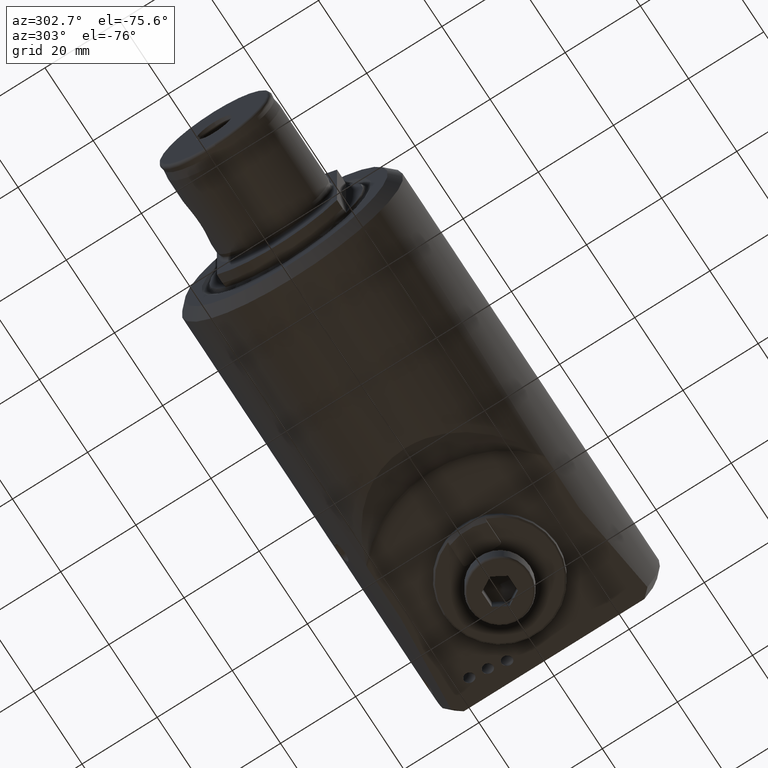
[diagram: clean part render]
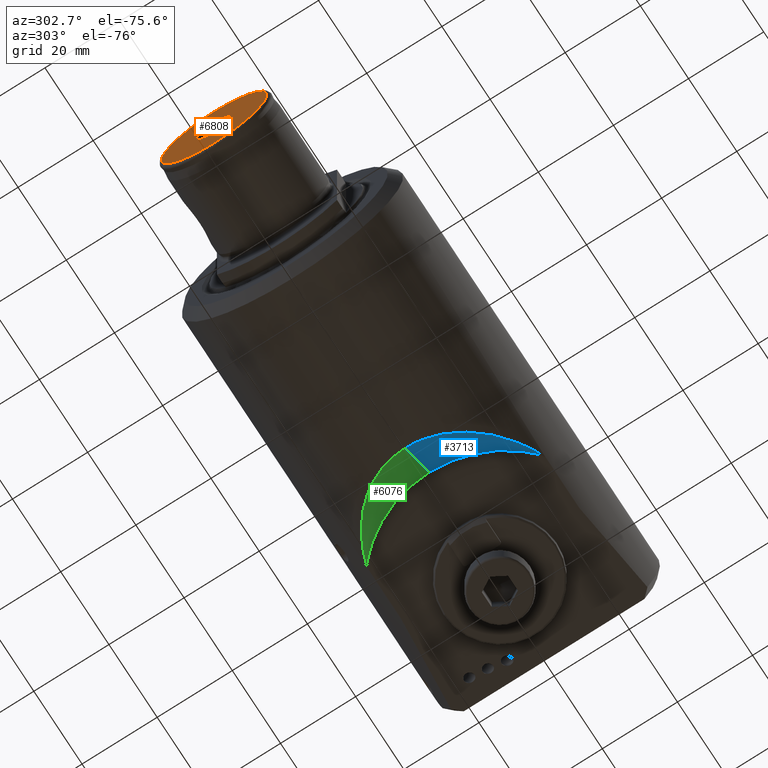
[diagram: same view with three faces highlighted in distinct colors, each labeled with its STEP entity id]
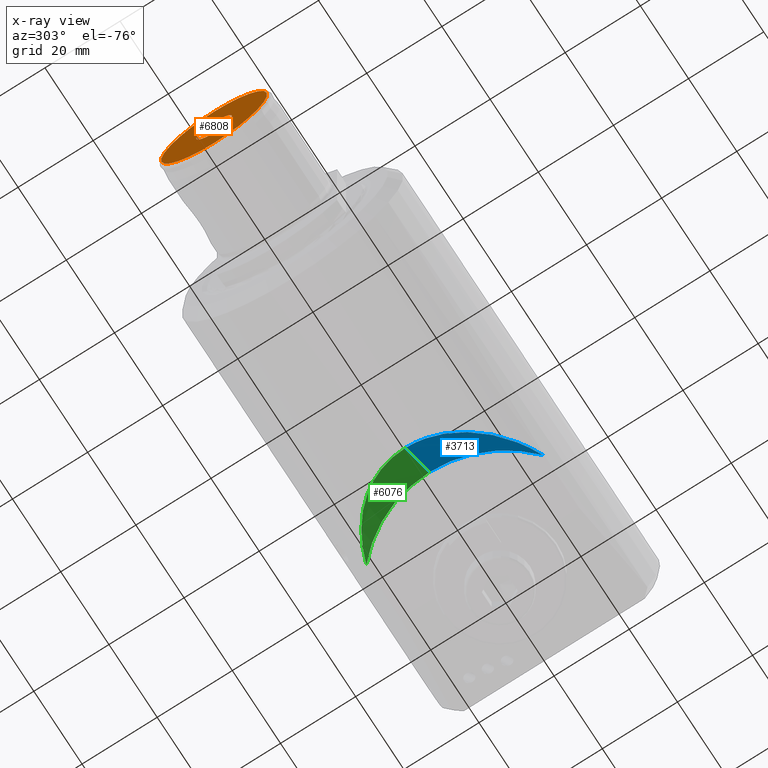
[diagram: x-ray of the same camera — body ghosted, the three highlighted faces saturated]
A machine part, auxiliary view with three faces highlighted in distinct colors.
The next image is the same camera in x-ray (body ghosted, the three faces saturated) — at least one of them is partly hidden behind the body in this view.
Their STEP definitions:

[orange] entity #6808 — the highlighted planar face has unit normal (1, 0, 0).
#92 = EDGE_LOOP ( 'NONE', ( #22389, #20858 ) ) ;
#1411 = CARTESIAN_POINT ( 'NONE',  ( -141.0000000000000000, -3.122502256758252800E-014, 0.0000000000000000000 ) ) ;
#2102 = CIRCLE ( 'NONE', #14800, 14.10000000000000000 ) ;
#2503 = CIRCLE ( 'NONE', #17292, 4.749999999999999100 ) ;
#3546 = DIRECTION ( 'NONE',  ( 0.0000000000000000000, 0.0000000000000000000, 1.000000000000000000 ) ) ;
#3902 = DIRECTION ( 'NONE',  ( -1.000000000000000000, -0.0000000000000000000, -0.0000000000000000000 ) ) ;
#4666 = CARTESIAN_POINT ( 'NONE',  ( -141.0000000000000000, -3.122502256758252800E-014, 14.10000000000000000 ) ) ;
#4721 = CARTESIAN_POINT ( 'NONE',  ( -141.0000000000000000, -2.945002891428468200E-014, -14.10000000000000000 ) ) ;
#4954 = EDGE_CURVE ( 'NONE', #13325, #21758, #5199, .T. ) ;
#5026 = CIRCLE ( 'NONE', #12080, 4.749999999999999100 ) ;
#5199 = CIRCLE ( 'NONE', #17218, 14.10000000000000000 ) ;
#5230 = CARTESIAN_POINT ( 'NONE',  ( -141.0000000000000000, -3.064331533798753600E-014, -4.749999999999999100 ) ) ;
#6195 = EDGE_CURVE ( 'NONE', #7525, #7224, #2503, .T. ) ;
#6808 = ADVANCED_FACE ( 'NONE', ( #20043, #14576 ), #12732, .F. ) ;
#7224 = VERTEX_POINT ( 'NONE', #5230 ) ;
#7525 = VERTEX_POINT ( 'NONE', #22704 ) ;
#9725 = ORIENTED_EDGE ( 'NONE', *, *, #19554, .F. ) ;
#10885 = CARTESIAN_POINT ( 'NONE',  ( -141.0000000000000000, -3.122502256758252800E-014, 0.0000000000000000000 ) ) ;
#11243 = CARTESIAN_POINT ( 'NONE',  ( -141.0000000000000000, 4.749999999999968000, 0.0000000000000000000 ) ) ;
#11612 = CARTESIAN_POINT ( 'NONE',  ( -141.0000000000000000, -3.122502256758252800E-014, 0.0000000000000000000 ) ) ;
#12080 = AXIS2_PLACEMENT_3D ( 'NONE', #1411, #3902, #3546 ) ;
#12628 = DIRECTION ( 'NONE',  ( -1.000000000000000000, -0.0000000000000000000, -0.0000000000000000000 ) ) ;
#12732 = PLANE ( 'NONE',  #19861 ) ;
#13325 = VERTEX_POINT ( 'NONE', #4666 ) ;
#13340 = EDGE_LOOP ( 'NONE', ( #13498, #9725 ) ) ;
#13498 = ORIENTED_EDGE ( 'NONE', *, *, #6195, .F. ) ;
#14576 = FACE_OUTER_BOUND ( 'NONE', #92, .T. ) ;
#14800 = AXIS2_PLACEMENT_3D ( 'NONE', #15745, #25775, #23775 ) ;
#15341 = DIRECTION ( 'NONE',  ( 0.0000000000000000000, 0.0000000000000000000, -1.000000000000000000 ) ) ;
#15745 = CARTESIAN_POINT ( 'NONE',  ( -141.0000000000000000, -3.122502256758252800E-014, 0.0000000000000000000 ) ) ;
#16079 = DIRECTION ( 'NONE',  ( -1.000000000000000000, -0.0000000000000000000, -0.0000000000000000000 ) ) ;
#16808 = DIRECTION ( 'NONE',  ( 0.0000000000000000000, 0.0000000000000000000, 1.000000000000000000 ) ) ;
#17218 = AXIS2_PLACEMENT_3D ( 'NONE', #11612, #16079, #22007 ) ;
#17292 = AXIS2_PLACEMENT_3D ( 'NONE', #10885, #12628, #16808 ) ;
#17986 = EDGE_CURVE ( 'NONE', #21758, #13325, #2102, .T. ) ;
#19554 = EDGE_CURVE ( 'NONE', #7224, #7525, #5026, .T. ) ;
#19861 = AXIS2_PLACEMENT_3D ( 'NONE', #11243, #21385, #15341 ) ;
#20043 = FACE_BOUND ( 'NONE', #13340, .T. ) ;
#20858 = ORIENTED_EDGE ( 'NONE', *, *, #17986, .T. ) ;
#21385 = DIRECTION ( 'NONE',  ( 1.000000000000000000, 0.0000000000000000000, 0.0000000000000000000 ) ) ;
#21758 = VERTEX_POINT ( 'NONE', #4721 ) ;
#22007 = DIRECTION ( 'NONE',  ( 0.0000000000000000000, 0.0000000000000000000, 1.000000000000000000 ) ) ;
#22389 = ORIENTED_EDGE ( 'NONE', *, *, #4954, .T. ) ;
#22704 = CARTESIAN_POINT ( 'NONE',  ( -141.0000000000000000, -3.122502256758252800E-014, 4.749999999999999100 ) ) ;
#23775 = DIRECTION ( 'NONE',  ( 0.0000000000000000000, 0.0000000000000000000, 1.000000000000000000 ) ) ;
#25775 = DIRECTION ( 'NONE',  ( -1.000000000000000000, -0.0000000000000000000, -0.0000000000000000000 ) ) ;

[blue] entity #3713 — the highlighted conical surface has half-angle 41 deg.
#191 = CARTESIAN_POINT ( 'NONE',  ( -46.18148627593133400, -21.44037295415936500, -20.27942885680528200 ) ) ;
#645 = CARTESIAN_POINT ( 'NONE',  ( -60.13577156596220900, -7.875987948606536700, -28.43714068254766800 ) ) ;
#2307 = CARTESIAN_POINT ( 'NONE',  ( -49.64399723491207100, -19.48672096566761200, -22.16675916150104400 ) ) ;
#2757 = CARTESIAN_POINT ( 'NONE',  ( -61.46614519953219300, -3.695108925804535500, -29.27661741016707000 ) ) ;
#3052 = CARTESIAN_POINT ( 'NONE',  ( -61.11405261528462100, -5.124437509923304800, -29.05373239318914000 ) ) ;
#3713 = ADVANCED_FACE ( 'NONE', ( #16279 ), #15634, .F. ) ;
#4242 = CARTESIAN_POINT ( 'NONE',  ( -41.25749496164801400, -23.50561482887582100, -17.82515277680758100 ) ) ;
#4407 = CARTESIAN_POINT ( 'NONE',  ( -52.37016857633049200, -17.53492496651459500, -23.72841427074461200 ) ) ;
#4513 = CARTESIAN_POINT ( 'NONE',  ( -53.93373593001381700, -16.21998501984811700, -24.64653795568112200 ) ) ;
#5060 = CARTESIAN_POINT ( 'NONE',  ( -61.59658029967105400, -2.969807482602246900, -29.35939245948956600 ) ) ;
#5389 = ORIENTED_EDGE ( 'NONE', *, *, #24589, .F. ) ;
#6437 = LINE ( 'NONE', #20910, #11340 ) ;
#6534 = CARTESIAN_POINT ( 'NONE',  ( -52.90119142499915500, -17.10833127548104600, -24.03840153199301700 ) ) ;
#6885 = CARTESIAN_POINT ( 'NONE',  ( -54.43514142212160300, -15.75857046018975000, -24.94459253245588600 ) ) ;
#8277 = VERTEX_POINT ( 'NONE', #4242 ) ;
#8466 = EDGE_CURVE ( 'NONE', #8277, #12189, #24512, .T. ) ;
#8581 = AXIS2_PLACEMENT_3D ( 'NONE', #11810, #13384, #25672 ) ;
#8998 = ORIENTED_EDGE ( 'NONE', *, *, #8466, .T. ) ;
#9154 = CARTESIAN_POINT ( 'NONE',  ( -56.80002844158357800, -13.28241104753334900, -26.36981272971254200 ) ) ;
#10801 = CARTESIAN_POINT ( 'NONE',  ( -42.52928144426839200, -23.05270621887639500, -18.42239283823247600 ) ) ;
#11080 = CARTESIAN_POINT ( 'NONE',  ( -58.04684527919116700, -11.58651837161978500, -27.13645995119946600 ) ) ;
#11340 = VECTOR ( 'NONE', #16987, 1000.000000000000000 ) ;
#11424 = VERTEX_POINT ( 'NONE', #12572 ) ;
#11557 = CARTESIAN_POINT ( 'NONE',  ( -61.81797651690429500, -8.539799719300386600E-019, -29.49999999999997900 ) ) ;
#11810 = CARTESIAN_POINT ( 'NONE',  ( -19.93000000000000000, 0.0000000000000000000, -17.82515277680758100 ) ) ;
#12189 = VERTEX_POINT ( 'NONE', #11557 ) ;
#12569 = EDGE_CURVE ( 'NONE', #8277, #11424, #16826, .T. ) ;
#12572 = CARTESIAN_POINT ( 'NONE',  ( -51.66918665975213500, 0.0000000000000000000, -17.82515277680757700 ) ) ;
#12928 = EDGE_LOOP ( 'NONE', ( #5389, #26304, #8998 ) ) ;
#13268 = CARTESIAN_POINT ( 'NONE',  ( -61.80662279111277300, -0.7515238096941662100, -29.49278380343997000 ) ) ;
#13384 = DIRECTION ( 'NONE',  ( -1.357946011454115300E-016, -0.0000000000000000000, -1.000000000000000000 ) ) ;
#14239 = AXIS2_PLACEMENT_3D ( 'NONE', #26109, #15895, #24009 ) ;
#15274 = CARTESIAN_POINT ( 'NONE',  ( -60.78715058035332700, -6.181425657419636000, -28.84725368945893500 ) ) ;
#15554 = CARTESIAN_POINT ( 'NONE',  ( -61.81797651690429500, -8.539799719300386600E-019, -29.49999999999997900 ) ) ;
#15634 = CONICAL_SURFACE ( 'NONE', #14239, 41.88797651690428800, 0.7155849933176941000 ) ;
#15895 = DIRECTION ( 'NONE',  ( -1.357946011454115300E-016, -0.0000000000000000000, -1.000000000000000000 ) ) ;
#16279 = FACE_OUTER_BOUND ( 'NONE', #12928, .T. ) ;
#16826 = CIRCLE ( 'NONE', #8581, 31.73918665975213200 ) ;
#16909 = CARTESIAN_POINT ( 'NONE',  ( -50.75564701552943300, -18.75211629131227300, -22.79590059941914900 ) ) ;
#16987 = DIRECTION ( 'NONE',  ( -0.6560590289905217100, 0.0000000000000000000, -0.7547095802227594700 ) ) ;
#16992 = CARTESIAN_POINT ( 'NONE',  ( -41.25749496164801400, -23.50561482887582100, -17.82515277680758100 ) ) ;
#17537 = CARTESIAN_POINT ( 'NONE',  ( -61.81797651690430200, -0.3747333225072590500, -29.49999999999997200 ) ) ;
#19034 = CARTESIAN_POINT ( 'NONE',  ( -47.35694975327863400, -20.83096444295097500, -20.90857302864764500 ) ) ;
#19297 = CARTESIAN_POINT ( 'NONE',  ( -59.51557101518876900, -9.163532351182428900, -28.04874027856574500 ) ) ;
#19395 = CARTESIAN_POINT ( 'NONE',  ( -60.90277289622309800, -5.830894220749341300, -28.92023337310039500 ) ) ;
#20910 = CARTESIAN_POINT ( 'NONE',  ( -61.81797651690429500, 0.0000000000000000000, -29.49999999999997900 ) ) ;
#21010 = CARTESIAN_POINT ( 'NONE',  ( -43.76765481361965700, -22.55129513900612500, -19.03638397188693800 ) ) ;
#21568 = CARTESIAN_POINT ( 'NONE',  ( -61.76188550398798300, -1.496862736924065200, -29.46435959697404500 ) ) ;
#21658 = CARTESIAN_POINT ( 'NONE',  ( -59.17587846213817200, -9.787022049557373600, -27.83670737082558600 ) ) ;
#23383 = CARTESIAN_POINT ( 'NONE',  ( -58.44246586070892800, -10.99730277733638900, -27.38115062357838900 ) ) ;
#23469 = CARTESIAN_POINT ( 'NONE',  ( -60.41630971028177300, -7.211954437129208800, -28.61352805100425200 ) ) ;
#23661 = CARTESIAN_POINT ( 'NONE',  ( -61.20968892377344200, -4.768880717904060000, -29.11423734081173000 ) ) ;
#24009 = DIRECTION ( 'NONE',  ( -1.000000000000000000, 0.0000000000000000000, 1.656535951577172200E-016 ) ) ;
#24512 = B_SPLINE_CURVE_WITH_KNOTS ( 'NONE', 3,
 ( #16992, #10801, #21010, #191, #19034, #2307, #16909, #4407, #6534, #4513, #6885, #25674, #9154, #11080, #23383, #21658, #19297, #645, #23469, #15274, #19395, #3052, #23661, #2757, #5060, #25567, #21568, #13268, #17537, #15554 ),
 .UNSPECIFIED., .F., .F.,
 ( 4, 2, 2, 2, 2, 2, 2, 2, 2, 2, 2, 2, 2, 2, 4 ),
 ( 0.002929220948335429000, 0.007326641046673640700, 0.01172406114501185200, 0.01612148124335006200, 0.01832019129251916100, 0.02051890134168826000, 0.02491632144002647900, 0.02711503148919557800, 0.02931374153836467700, 0.03151245158753378200, 0.03261180661211832800, 0.03371116163670288800, 0.03590987168587198700, 0.03700922671045653300, 0.03810858173504107900 ),
 .UNSPECIFIED. ) ;
#24589 = EDGE_CURVE ( 'NONE', #11424, #12189, #6437, .T. ) ;
#25567 = CARTESIAN_POINT ( 'NONE',  ( -61.72853375353790300, -1.866963124328140200, -29.44317186056745300 ) ) ;
#25672 = DIRECTION ( 'NONE',  ( -1.000000000000000000, 0.0000000000000000000, 1.093111486802261000E-016 ) ) ;
#25674 = CARTESIAN_POINT ( 'NONE',  ( -55.89175229141354600, -14.31768516740540800, -25.81694888407880100 ) ) ;
#26109 = CARTESIAN_POINT ( 'NONE',  ( -19.93000000000000300, 0.0000000000000000000, -29.49999999999998600 ) ) ;
#26304 = ORIENTED_EDGE ( 'NONE', *, *, #12569, .F. ) ;

[green] entity #6076 — the highlighted conical surface has half-angle 41 deg.
#456 = CARTESIAN_POINT ( 'NONE',  ( -52.93287859945904500, 17.08219790896786700, -24.05696152309831600 ) ) ;
#636 = CARTESIAN_POINT ( 'NONE',  ( -61.21350785888970600, 4.754170903922911000, -29.11665396165792400 ) ) ;
#800 = VERTEX_POINT ( 'NONE', #6736 ) ;
#1242 = CIRCLE ( 'NONE', #3050, 31.73918665975213200 ) ;
#2571 = CARTESIAN_POINT ( 'NONE',  ( -43.79123256884278700, 22.54168357785848900, -19.04809428294097600 ) ) ;
#2746 = CARTESIAN_POINT ( 'NONE',  ( -61.11740858230424300, 5.112339675613687200, -29.05585477040364900 ) ) ;
#2850 = CARTESIAN_POINT ( 'NONE',  ( -56.82009825805763400, 13.25684314772438400, -26.38210488951845900 ) ) ;
#2956 = CARTESIAN_POINT ( 'NONE',  ( -47.40401120149381600, 20.80557262688583700, -20.93397498354658000 ) ) ;
#3050 = AXIS2_PLACEMENT_3D ( 'NONE', #6317, #19123, #8409 ) ;
#3463 = EDGE_CURVE ( 'NONE', #11424, #800, #1242, .T. ) ;
#3605 = EDGE_CURVE ( 'NONE', #12189, #800, #15825, .T. ) ;
#4681 = CARTESIAN_POINT ( 'NONE',  ( -59.51551171438170200, 9.144465813894143500, -28.04886683089624800 ) ) ;
#4771 = CARTESIAN_POINT ( 'NONE',  ( -58.99581377620545200, 10.08401058045448000, -27.72486335455069600 ) ) ;
#4873 = CARTESIAN_POINT ( 'NONE',  ( -41.25749496164801400, 23.50561482887582100, -17.82515277680758100 ) ) ;
#4962 = CARTESIAN_POINT ( 'NONE',  ( -46.22342552634054200, 21.41979766441731700, -20.30146946286219000 ) ) ;
#6076 = ADVANCED_FACE ( 'NONE', ( #10021 ), #17858, .F. ) ;
#6317 = CARTESIAN_POINT ( 'NONE',  ( -19.93000000000000000, 0.0000000000000000000, -17.82515277680758100 ) ) ;
#6437 = LINE ( 'NONE', #20910, #11340 ) ;
#6736 = CARTESIAN_POINT ( 'NONE',  ( -41.25749496164801400, 23.50561482887582100, -17.82515277680758100 ) ) ;
#6804 = ORIENTED_EDGE ( 'NONE', *, *, #3605, .T. ) ;
#6960 = CARTESIAN_POINT ( 'NONE',  ( -55.91817276061975400, 14.28878164533462100, -25.83295036721566600 ) ) ;
#8409 = DIRECTION ( 'NONE',  ( -1.000000000000000000, 0.0000000000000000000, 1.093111486802261000E-016 ) ) ;
#9255 = AXIS2_PLACEMENT_3D ( 'NONE', #16454, #16634, #12443 ) ;
#10021 = FACE_OUTER_BOUND ( 'NONE', #25733, .T. ) ;
#10879 = CARTESIAN_POINT ( 'NONE',  ( -59.17430615236580100, 9.773297557828986000, -27.83599900066395000 ) ) ;
#11068 = CARTESIAN_POINT ( 'NONE',  ( -61.81797651690429500, 1.495757387974178300, -29.49999999999997900 ) ) ;
#11155 = CARTESIAN_POINT ( 'NONE',  ( -54.46491169495395500, 15.73044527772954400, -24.96233648439434200 ) ) ;
#11340 = VECTOR ( 'NONE', #16987, 1000.000000000000000 ) ;
#11424 = VERTEX_POINT ( 'NONE', #12572 ) ;
#11557 = CARTESIAN_POINT ( 'NONE',  ( -61.81797651690429500, -8.539799719300386600E-019, -29.49999999999997900 ) ) ;
#12189 = VERTEX_POINT ( 'NONE', #11557 ) ;
#12443 = DIRECTION ( 'NONE',  ( -1.000000000000000000, 0.0000000000000000000, 1.656535951577172200E-016 ) ) ;
#12572 = CARTESIAN_POINT ( 'NONE',  ( -51.66918665975213500, 0.0000000000000000000, -17.82515277680757700 ) ) ;
#13162 = CARTESIAN_POINT ( 'NONE',  ( -59.67863676377559300, 8.825722692800138000, -28.15085400384515100 ) ) ;
#13257 = CARTESIAN_POINT ( 'NONE',  ( -53.96192711198975200, 16.19453465657262100, -24.66325060453399600 ) ) ;
#15075 = CARTESIAN_POINT ( 'NONE',  ( -60.90704553019782000, 5.817453093457592300, -28.92293126401718300 ) ) ;
#15262 = CARTESIAN_POINT ( 'NONE',  ( -50.80270713640320000, 18.71921104474862900, -22.82276136771217200 ) ) ;
#15450 = CARTESIAN_POINT ( 'NONE',  ( -61.81797651690429500, -8.539799719300386600E-019, -29.49999999999997900 ) ) ;
#15825 = B_SPLINE_CURVE_WITH_KNOTS ( 'NONE', 3,
 ( #15450, #11068, #21275, #636, #2746, #15075, #25557, #17261, #17524, #13162, #4681, #10879, #4771, #25760, #21380, #2850, #6960, #11155, #13257, #456, #17428, #15262, #21649, #2956, #4962, #2571, #17346, #4873 ),
 .UNSPECIFIED., .F., .F.,
 ( 4, 2, 2, 2, 2, 2, 2, 2, 2, 2, 2, 2, 2, 4 ),
 ( 0.03810858173504107900, 0.04249668469056893500, 0.04359371042945089900, 0.04469073616833286300, 0.04688478764609679100, 0.04798181338497875500, 0.04907883912386071900, 0.05127289060162464100, 0.05566099355715248300, 0.05785504503491640400, 0.06004909651268032500, 0.06443719946820816700, 0.06882530242373599600, 0.07321340537926383800 ),
 .UNSPECIFIED. ) ;
#16454 = CARTESIAN_POINT ( 'NONE',  ( -19.93000000000000300, 0.0000000000000000000, -29.49999999999998600 ) ) ;
#16634 = DIRECTION ( 'NONE',  ( -1.357946011454115300E-016, -0.0000000000000000000, -1.000000000000000000 ) ) ;
#16987 = DIRECTION ( 'NONE',  ( -0.6560590289905217100, 0.0000000000000000000, -0.7547095802227594700 ) ) ;
#17261 = CARTESIAN_POINT ( 'NONE',  ( -60.42441479428232800, 7.191422236985353300, -28.61862901237999100 ) ) ;
#17346 = CARTESIAN_POINT ( 'NONE',  ( -42.53680781703526000, 23.05002592696043400, -18.42592727690989200 ) ) ;
#17428 = CARTESIAN_POINT ( 'NONE',  ( -52.40770326581517200, 17.50526595038027400, -23.75026291755102600 ) ) ;
#17524 = CARTESIAN_POINT ( 'NONE',  ( -60.14470422384312100, 7.855950599029632100, -28.44274756365241400 ) ) ;
#17858 = CONICAL_SURFACE ( 'NONE', #9255, 41.88797651690428800, 0.7155849933176941000 ) ;
#19123 = DIRECTION ( 'NONE',  ( -1.357946011454115300E-016, -0.0000000000000000000, -1.000000000000000000 ) ) ;
#19403 = ORIENTED_EDGE ( 'NONE', *, *, #24589, .T. ) ;
#20542 = ORIENTED_EDGE ( 'NONE', *, *, #3463, .F. ) ;
#20910 = CARTESIAN_POINT ( 'NONE',  ( -61.81797651690429500, 0.0000000000000000000, -29.49999999999997900 ) ) ;
#21275 = CARTESIAN_POINT ( 'NONE',  ( -61.64044913673593800, 2.960043617377176700, -29.38698698896248700 ) ) ;
#21380 = CARTESIAN_POINT ( 'NONE',  ( -58.05304300174930900, 11.57720586489268300, -27.14029553124142400 ) ) ;
#21649 = CARTESIAN_POINT ( 'NONE',  ( -49.69362328454377600, 19.45518556307139600, -22.19456950812142200 ) ) ;
#24589 = EDGE_CURVE ( 'NONE', #11424, #12189, #6437, .T. ) ;
#25557 = CARTESIAN_POINT ( 'NONE',  ( -60.79279873096643900, 6.164694735969357400, -28.85081730033001400 ) ) ;
#25733 = EDGE_LOOP ( 'NONE', ( #20542, #19403, #6804 ) ) ;
#25760 = CARTESIAN_POINT ( 'NONE',  ( -58.44390518476944200, 10.99523427114108600, -27.38203960598323800 ) ) ;